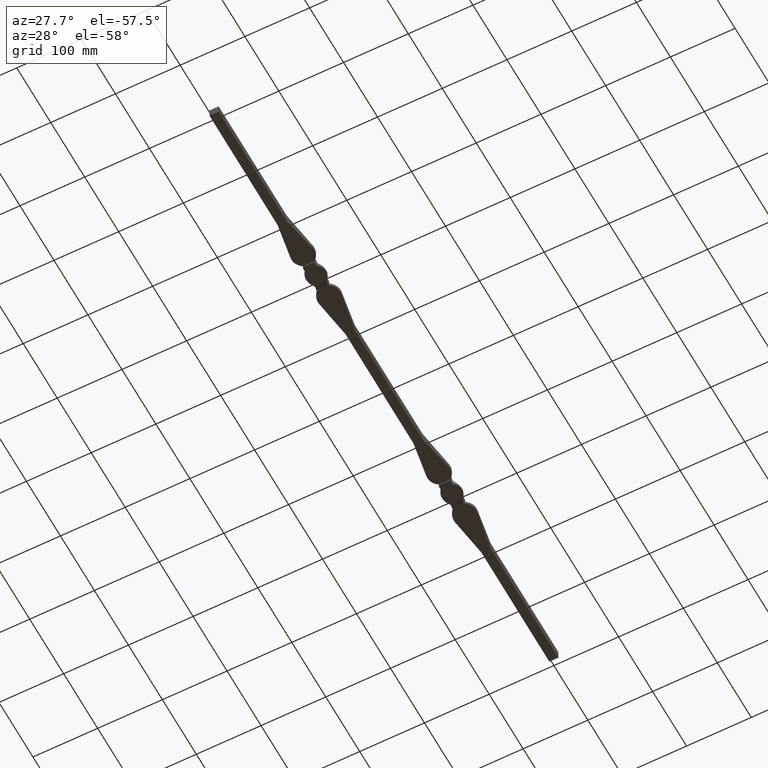
[diagram: clean part render]
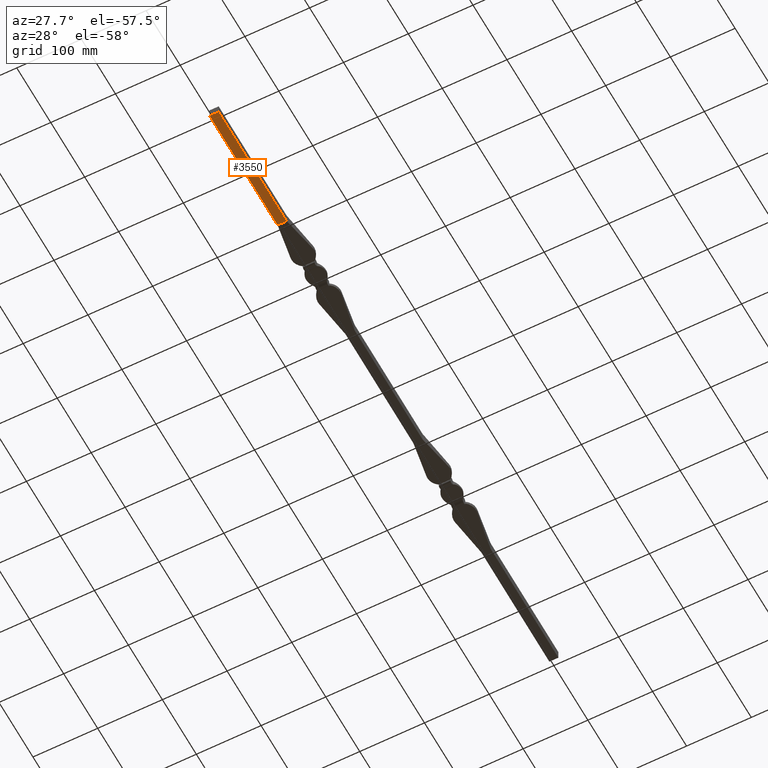
[diagram: same view with one face highlighted and labeled with its STEP entity id]
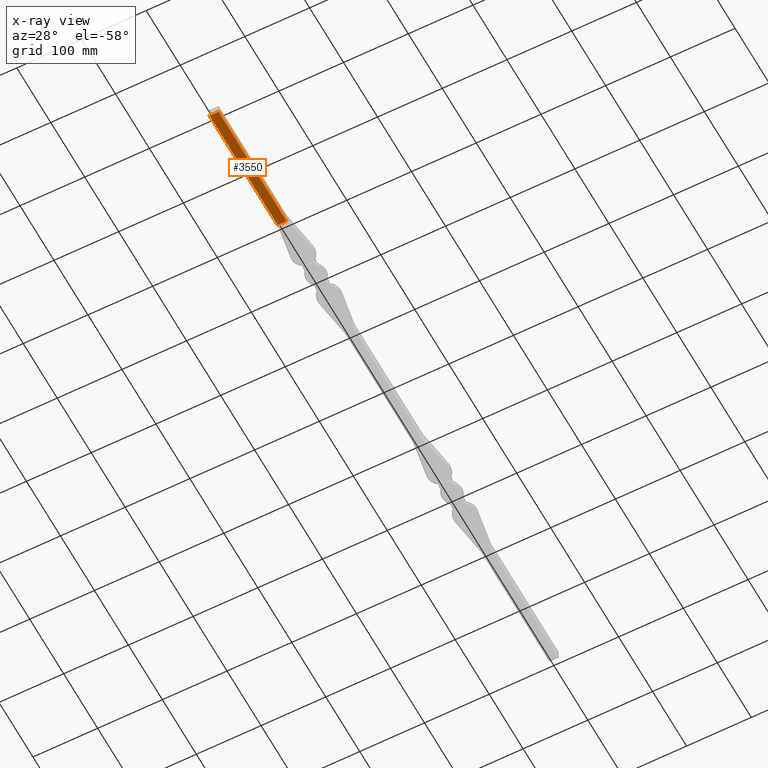
[diagram: x-ray of the same camera — body ghosted, the highlighted face saturated]
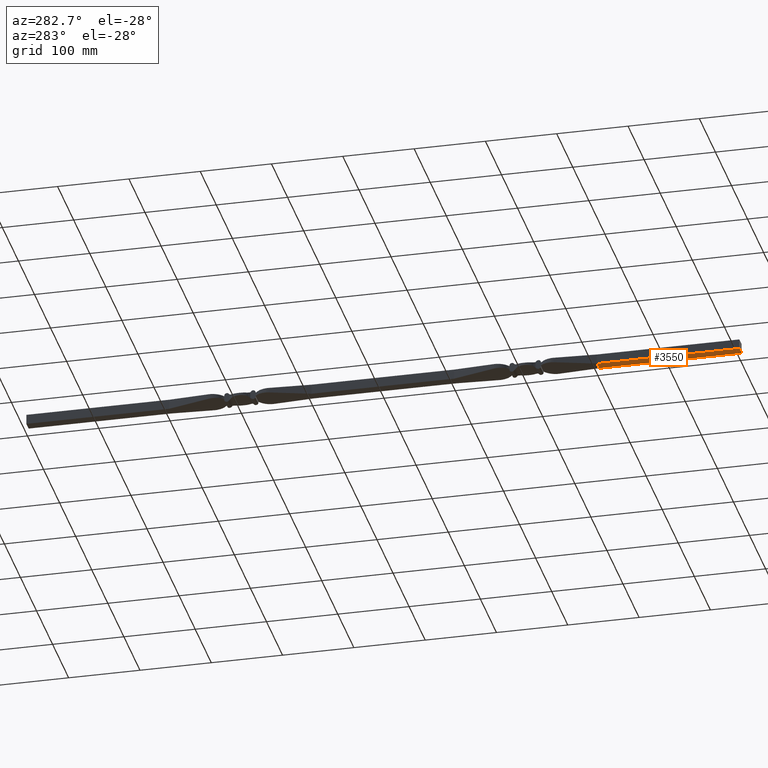
[diagram: same view with one face highlighted and labeled with its STEP entity id]
A machine part, auxiliary view. The second image highlights one B-rep face of the part: STEP entity #3550.
The next image is the same camera in x-ray: the body ghosted, the highlighted face saturated — about 0% of this face is hidden behind the body in this view.
A second angle (auxiliary view) of the same face is appended — the face is thin or edge-on in the first view.
In plain terms, the highlighted planar face has unit normal (0, 0, 1).
Its self-contained STEP definition (entity closure, byte-faithful):
#164 = EDGE_CURVE ( 'NONE', #11902, #5728, #867, .T. ) ;
#658 = EDGE_CURVE ( 'NONE', #9936, #5728, #2868, .T. ) ;
#836 = DIRECTION ( 'NONE',  ( -1.000000000000000000, 0.000000000000000000, 0.000000000000000000 ) ) ;
#867 = LINE ( 'NONE', #2422, #8067 ) ;
#1491 = ORIENTED_EDGE ( 'NONE', *, *, #3127, .T. ) ;
#1498 = VECTOR ( 'NONE', #836, 1000.000000000000000 ) ;
#2422 = CARTESIAN_POINT ( 'NONE',  ( -7.000000000000002665, -500.0000000000000000, -7.000000000000000000 ) ) ;
#2868 = LINE ( 'NONE', #11204, #4336 ) ;
#3003 = ORIENTED_EDGE ( 'NONE', *, *, #164, .F. ) ;
#3127 = EDGE_CURVE ( 'NONE', #12804, #9936, #4471, .T. ) ;
#3440 = CARTESIAN_POINT ( 'NONE',  ( -7.000000000000002665, -700.0000000000000000, -7.000000000000000000 ) ) ;
#3491 = DIRECTION ( 'NONE',  ( 1.000000000000000000, 0.000000000000000000, 0.000000000000000000 ) ) ;
#3550 = ADVANCED_FACE ( 'NONE', ( #13862 ), #3586, .F. ) ;
#3586 = PLANE ( 'NONE',  #12479 ) ;
#3747 = CARTESIAN_POINT ( 'NONE',  ( 7.000000000000000888, -500.0000000000000000, -7.000000000000000000 ) ) ;
#4336 = VECTOR ( 'NONE', #12352, 1000.000000000000000 ) ;
#4471 = LINE ( 'NONE', #6359, #1498 ) ;
#5728 = VERTEX_POINT ( 'NONE', #10418 ) ;
#5736 = DIRECTION ( 'NONE',  ( 0.000000000000000000, 0.000000000000000000, 1.000000000000000000 ) ) ;
#6013 = CARTESIAN_POINT ( 'NONE',  ( 6.999999999999998224, -1019.798989873223150, -7.000000000000000000 ) ) ;
#6280 = LINE ( 'NONE', #6013, #8298 ) ;
#6359 = CARTESIAN_POINT ( 'NONE',  ( -7.000000000000002665, -700.0000000000000000, -7.000000000000000000 ) ) ;
#6511 = EDGE_CURVE ( 'NONE', #12804, #11902, #6280, .T. ) ;
#7052 = DIRECTION ( 'NONE',  ( -0.000000000000000000, 1.000000000000000000, -0.000000000000000000 ) ) ;
#7866 = ORIENTED_EDGE ( 'NONE', *, *, #6511, .F. ) ;
#8048 = CARTESIAN_POINT ( 'NONE',  ( 6.999999999999998224, -700.0000000000000000, -7.000000000000000000 ) ) ;
#8067 = VECTOR ( 'NONE', #11898, 1000.000000000000000 ) ;
#8298 = VECTOR ( 'NONE', #7052, 1000.000000000000000 ) ;
#9936 = VERTEX_POINT ( 'NONE', #3440 ) ;
#10080 = ORIENTED_EDGE ( 'NONE', *, *, #658, .T. ) ;
#10418 = CARTESIAN_POINT ( 'NONE',  ( -7.000000000000002665, -500.0000000000000000, -7.000000000000000000 ) ) ;
#11092 = CARTESIAN_POINT ( 'NONE',  ( -7.000000000000002665, -1019.798989873223150, -7.000000000000000000 ) ) ;
#11204 = CARTESIAN_POINT ( 'NONE',  ( -7.000000000000002665, -1019.798989873223150, -7.000000000000000000 ) ) ;
#11898 = DIRECTION ( 'NONE',  ( -1.000000000000000000, 0.000000000000000000, -0.000000000000000000 ) ) ;
#11902 = VERTEX_POINT ( 'NONE', #3747 ) ;
#12352 = DIRECTION ( 'NONE',  ( -0.000000000000000000, 1.000000000000000000, -0.000000000000000000 ) ) ;
#12479 = AXIS2_PLACEMENT_3D ( 'NONE', #11092, #5736, #3491 ) ;
#12551 = EDGE_LOOP ( 'NONE', ( #10080, #3003, #7866, #1491 ) ) ;
#12804 = VERTEX_POINT ( 'NONE', #8048 ) ;
#13862 = FACE_OUTER_BOUND ( 'NONE', #12551, .T. ) ;